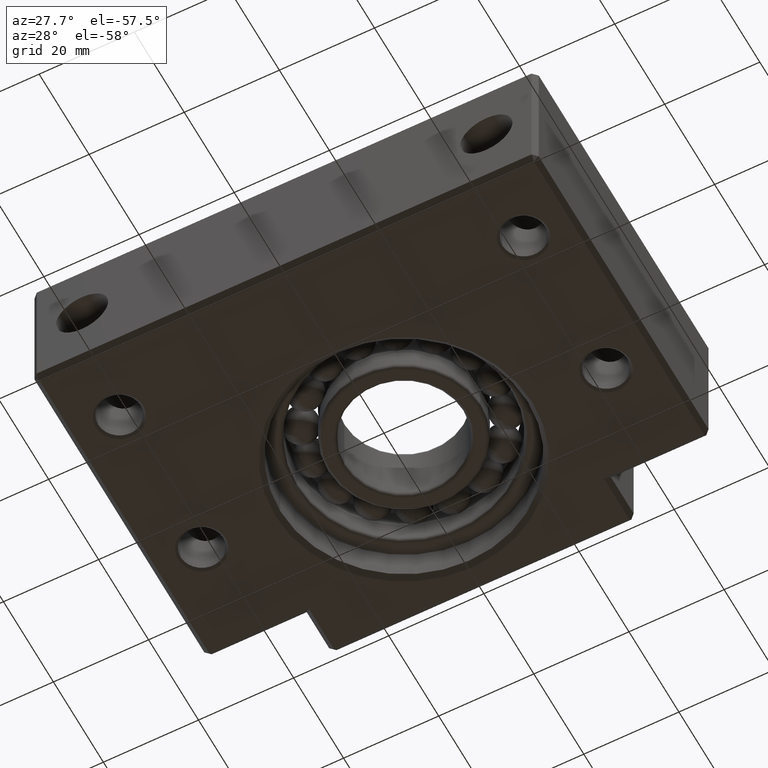
[diagram: clean part render]
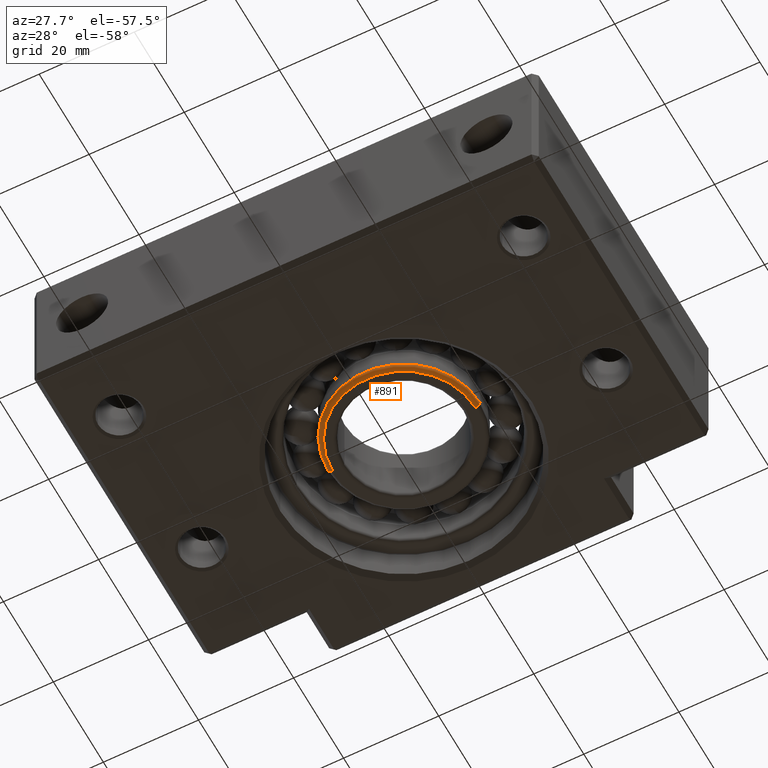
[diagram: same view with one face highlighted and labeled with its STEP entity id]
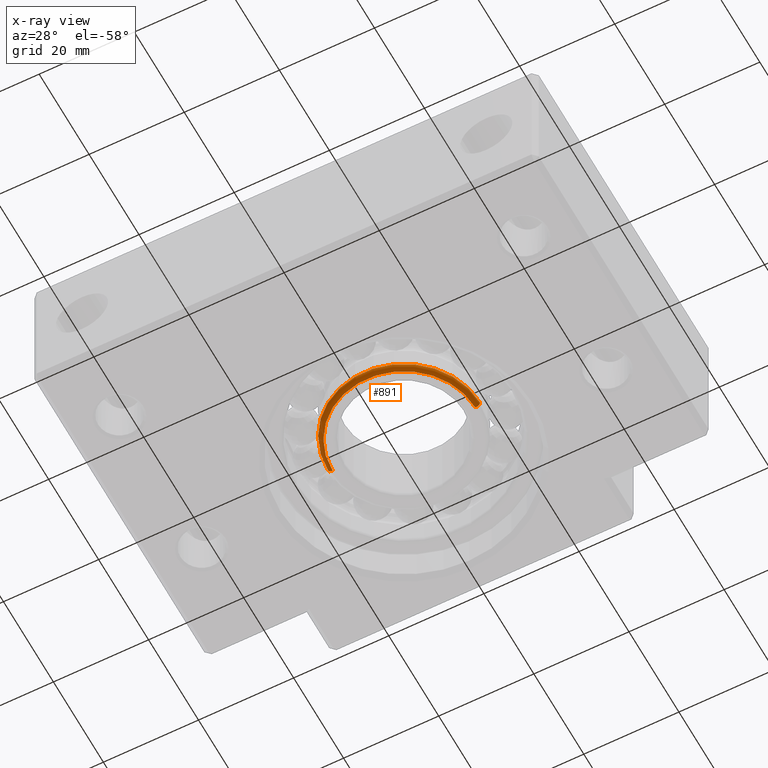
[diagram: x-ray of the same camera — body ghosted, the highlighted face saturated]
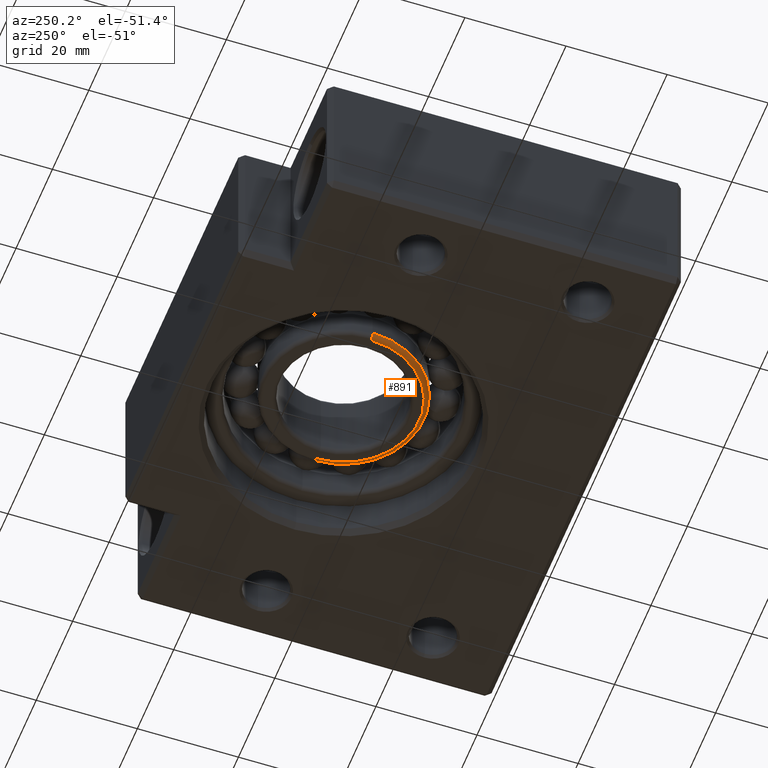
[diagram: same view with one face highlighted and labeled with its STEP entity id]
A machine part, auxiliary view. The second image highlights one B-rep face of the part: STEP entity #891.
The next image is the same camera in x-ray: the body ghosted, the highlighted face saturated — about 0% of this face is hidden behind the body in this view.
A second angle (auxiliary view) of the same face is appended — the face is thin or edge-on in the first view.
In plain terms, the highlighted toroidal blend (fillet) surface has major radius 15 mm and minor (blend) radius 1 mm.
Its self-contained STEP definition (entity closure, byte-faithful):
#388 = VERTEX_POINT ( 'NONE', #2347 ) ;
#390 = VERTEX_POINT ( 'NONE', #2346 ) ;
#588 = VERTEX_POINT ( 'NONE', #2701 ) ;
#590 = EDGE_CURVE ( 'NONE', #588, #390, #2700, .T. ) ;
#595 = VERTEX_POINT ( 'NONE', #2689 ) ;
#654 = EDGE_CURVE ( 'NONE', #595, #388, #2830, .T. ) ;
#876 = EDGE_LOOP ( 'NONE', ( #916, #908, #911, #912 ) ) ;
#891 = ADVANCED_FACE ( 'NONE', ( #3191 ), #3190, .T. ) ;
#896 = EDGE_CURVE ( 'NONE', #588, #595, #3188, .T. ) ;
#908 = ORIENTED_EDGE ( 'NONE', *, *, #896, .T. ) ;
#911 = ORIENTED_EDGE ( 'NONE', *, *, #654, .T. ) ;
#912 = ORIENTED_EDGE ( 'NONE', *, *, #913, .F. ) ;
#913 = EDGE_CURVE ( 'NONE', #390, #388, #3173, .T. ) ;
#916 = ORIENTED_EDGE ( 'NONE', *, *, #590, .F. ) ;
#2346 = CARTESIAN_POINT ( 'NONE',  ( -15.99999999999998900, 48.00000000000000000, -7.000000000000013300 ) ) ;
#2347 = CARTESIAN_POINT ( 'NONE',  ( 16.00000000000001100, 48.00000000000000000, -7.000000000000013300 ) ) ;
#2689 = CARTESIAN_POINT ( 'NONE',  ( 15.00000000000001100, 48.00000000000000000, -8.000000000000014200 ) ) ;
#2696 = DIRECTION ( 'NONE',  ( -1.000000000000000000, 0.0000000000000000000, 0.0000000000000000000 ) ) ;
#2697 = DIRECTION ( 'NONE',  ( 1.224606353822377300E-016, 1.000000000000000000, 0.0000000000000000000 ) ) ;
#2698 = CARTESIAN_POINT ( 'NONE',  ( -14.99999999999998900, 48.00000000000000000, -7.000000000000013300 ) ) ;
#2699 = AXIS2_PLACEMENT_3D ( 'NONE', #2698, #2697, #2696 ) ;
#2700 = CIRCLE ( 'NONE', #2699, 1.000000000000000900 ) ;
#2701 = CARTESIAN_POINT ( 'NONE',  ( -14.99999999999998900, 48.00000000000000000, -8.000000000000014200 ) ) ;
#2822 = DIRECTION ( 'NONE',  ( 0.0000000000000000000, 0.0000000000000000000, -1.000000000000000000 ) ) ;
#2823 = DIRECTION ( 'NONE',  ( 0.0000000000000000000, -1.000000000000000000, 0.0000000000000000000 ) ) ;
#2824 = CARTESIAN_POINT ( 'NONE',  ( 15.00000000000001100, 48.00000000000000000, -7.000000000000013300 ) ) ;
#2825 = AXIS2_PLACEMENT_3D ( 'NONE', #2824, #2823, #2822 ) ;
#2830 = CIRCLE ( 'NONE', #2825, 1.000000000000000900 ) ;
#3165 = DIRECTION ( 'NONE',  ( 1.000000000000000000, 0.0000000000000000000, 0.0000000000000000000 ) ) ;
#3166 = DIRECTION ( 'NONE',  ( -0.0000000000000000000, -0.0000000000000000000, 1.000000000000000000 ) ) ;
#3167 = CARTESIAN_POINT ( 'NONE',  ( 1.124572892961660300E-014, 48.00000000000000000, -7.000000000000013300 ) ) ;
#3168 = AXIS2_PLACEMENT_3D ( 'NONE', #3167, #3166, #3165 ) ;
#3173 = CIRCLE ( 'NONE', #3168, 16.00000000000000000 ) ;
#3181 = DIRECTION ( 'NONE',  ( 1.000000000000000000, 0.0000000000000000000, 0.0000000000000000000 ) ) ;
#3182 = DIRECTION ( 'NONE',  ( -0.0000000000000000000, -0.0000000000000000000, 1.000000000000000000 ) ) ;
#3183 = CARTESIAN_POINT ( 'NONE',  ( 1.124572892961660300E-014, 48.00000000000000000, -8.000000000000014200 ) ) ;
#3184 = AXIS2_PLACEMENT_3D ( 'NONE', #3183, #3182, #3181 ) ;
#3185 = DIRECTION ( 'NONE',  ( 1.000000000000000000, 0.0000000000000000000, 0.0000000000000000000 ) ) ;
#3186 = DIRECTION ( 'NONE',  ( -0.0000000000000000000, -0.0000000000000000000, 1.000000000000000000 ) ) ;
#3187 = AXIS2_PLACEMENT_3D ( 'NONE', #3189, #3186, #3185 ) ;
#3188 = CIRCLE ( 'NONE', #3184, 15.00000000000000000 ) ;
#3189 = CARTESIAN_POINT ( 'NONE',  ( 1.124572892961660300E-014, 48.00000000000000000, -7.000000000000013300 ) ) ;
#3190 = TOROIDAL_SURFACE ( 'NONE', #3187, 15.00000000000000000, 1.000000000000000900 ) ;
#3191 = FACE_OUTER_BOUND ( 'NONE', #876, .T. ) ;